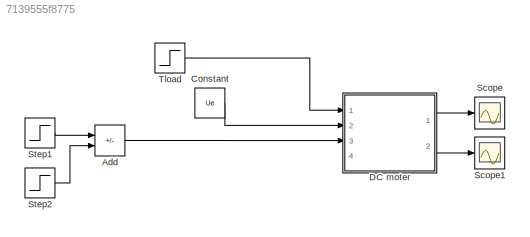
MODEL slx_7139555f8775
KIND model
CONFIG AbsTol = auto
CONFIG EnableMultiTasking = off
CONFIG FixedStep = auto
CONFIG MaxStep = 0.001
CONFIG MinStep = auto
CONFIG RelTol = 1e-3
CONFIG SampleTimeConstraint = Unconstrained
CONFIG SolverName = VariableStepAuto
CONFIG StartTime = 0.0
CONFIG StopTime = Tmdl
BLOCK [Sum] Add
  IconShape = rectangular
  Inputs = +-
  Ports = [2, 1]
BLOCK [Constant] Constant
  Value = Ue
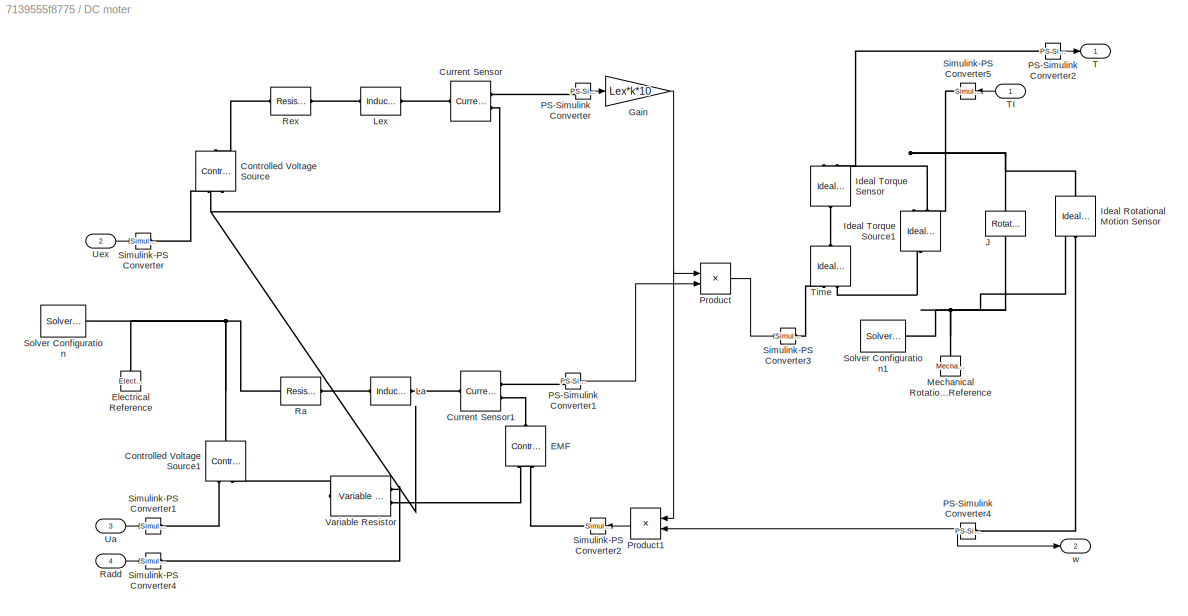
BLOCK [SubSystem] DC moter
  Ports = [4, 2]
  RequestExecContextInheritance = off
BLOCK [Reference] DC moter/Controlled Voltage Source  REF=fl_lib/Electrical/Electrical Sources/Controlled Voltage
Source
  NameLocation = right
  Ports = [0, 0, 0, 0, 0, 1, 2]
  SourceBlock = fl_lib/Electrical/Electrical Sources/Controlled Voltage\nSource
  SourceProductBaseCode = PW,SS,VE
  SourceType = Controlled Voltage\nSource
BLOCK [Reference] DC moter/Controlled Voltage Source1  REF=fl_lib/Electrical/Electrical Sources/Controlled Voltage
Source
  NameLocation = right
  Ports = [0, 0, 0, 0, 0, 1, 2]
  SourceBlock = fl_lib/Electrical/Electrical Sources/Controlled Voltage\nSource
  SourceProductBaseCode = PW,SS,VE
  SourceType = Controlled Voltage\nSource
BLOCK [Reference] DC moter/Current Sensor  REF=fl_lib/Electrical/Electrical Sensors/Current Sensor
  Ports = [0, 0, 0, 0, 0, 1, 2]
  SourceBlock = fl_lib/Electrical/Electrical Sensors/Current Sensor
  SourceProductBaseCode = PW,SS,VE
  SourceType = Current Sensor
BLOCK [Reference] DC moter/Current Sensor1  REF=fl_lib/Electrical/Electrical Sensors/Current Sensor
  Ports = [0, 0, 0, 0, 0, 1, 2]
  SourceBlock = fl_lib/Electrical/Electrical Sensors/Current Sensor
  SourceProductBaseCode = PW,SS,VE
  SourceType = Current Sensor
BLOCK [Reference] DC moter/EMF  REF=fl_lib/Electrical/Electrical Sources/Controlled Voltage
Source
  NameLocation = right
  Ports = [0, 0, 0, 0, 0, 1, 2]
  SourceBlock = fl_lib/Electrical/Electrical Sources/Controlled Voltage\nSource
  SourceProductBaseCode = PW,SS,VE
  SourceType = Controlled Voltage\nSource
BLOCK [Reference] DC moter/Electrical Reference  REF=fl_lib/Electrical/Electrical Elements/Electrical Reference
  NameLocation = right
  Ports = [0, 0, 0, 0, 0, 1]
  SourceBlock = fl_lib/Electrical/Electrical Elements/Electrical Reference
  SourceProductBaseCode = PW,SS,VE
  SourceType = Electrical Reference
BLOCK [Gain] DC moter/Gain
  Gain = Lex*k*10
BLOCK [Reference] DC moter/Ideal Rotational Motion Sensor  REF=fl_lib/Mechanical/Mechanical Sensors/Ideal Rotational
Motion Sensor
  NameLocation = left
  Ports = [0, 0, 0, 0, 0, 1, 3]
  SourceBlock = fl_lib/Mechanical/Mechanical Sensors/Ideal Rotational\nMotion Sensor
  SourceProductBaseCode = PW,SS,VE
  SourceType = Ideal Rotational\nMotion Sensor
BLOCK [Reference] DC moter/Ideal Torque Sensor  REF=fl_lib/Mechanical/Mechanical Sensors/Ideal Torque Sensor
  NameLocation = right
  Ports = [0, 0, 0, 0, 0, 1, 2]
  SourceBlock = fl_lib/Mechanical/Mechanical Sensors/Ideal Torque Sensor
  SourceProductBaseCode = PW,SS,VE
  SourceType = Ideal Torque Sensor
BLOCK [Reference] DC moter/Ideal Torque Source1  REF=fl_lib/Mechanical/Mechanical Sources/Ideal Torque Source
  NameLocation = left
  Ports = [0, 0, 0, 0, 0, 1, 2]
  SourceBlock = fl_lib/Mechanical/Mechanical Sources/Ideal Torque Source
  SourceProductBaseCode = PW,SS,VE
  SourceType = Ideal Torque Source
BLOCK [Reference] DC moter/J  REF=fl_lib/Mechanical/Rotational Elements/Rotational Inerter
  NameLocation = left
  Ports = [0, 0, 0, 0, 0, 1, 1]
  SourceBlock = fl_lib/Mechanical/Rotational Elements/Rotational Inerter
  SourceProductBaseCode = PW,SS,VE
  SourceType = Rotational Inerter
BLOCK [Reference] DC moter/La  REF=ee_lib/Passive/Inductor
  Ports = [0, 0, 0, 0, 0, 1, 1]
  SourceBlock = ee_lib/Passive/Inductor
  SourceProductBaseCode = PS
  SourceType = Inductor
BLOCK [Reference] DC moter/Lex  REF=ee_lib/Passive/Inductor
  Ports = [0, 0, 0, 0, 0, 1, 1]
  SourceBlock = ee_lib/Passive/Inductor
  SourceProductBaseCode = PS
  SourceType = Inductor
BLOCK [Reference] DC moter/Mechanical Rotational Reference  REF=fl_lib/Mechanical/Rotational Elements/Mechanical
Rotational Reference
  NameLocation = right
  Ports = [0, 0, 0, 0, 0, 1]
  SourceBlock = fl_lib/Mechanical/Rotational Elements/Mechanical\nRotational Reference
  SourceProductBaseCode = PW,SS,VE
  SourceType = Mechanical\nRotational Reference
BLOCK [Reference] DC moter/PS-Simulink Converter  REF=nesl_utility/PS-Simulink
Converter
  Ports = [0, 1, 0, 0, 0, 1]
  SourceBlock = nesl_utility/PS-Simulink\nConverter
  SourceProductBaseCode = SS,PW,VE
  SourceType = PS-Simulink\nConverter
BLOCK [Reference] DC moter/PS-Simulink Converter1  REF=nesl_utility/PS-Simulink
Converter
  Ports = [0, 1, 0, 0, 0, 1]
  SourceBlock = nesl_utility/PS-Simulink\nConverter
  SourceProductBaseCode = SS,PW,VE
  SourceType = PS-Simulink\nConverter
BLOCK [Reference] DC moter/PS-Simulink Converter2  REF=nesl_utility/PS-Simulink
Converter
  Ports = [0, 1, 0, 0, 0, 1]
  SourceBlock = nesl_utility/PS-Simulink\nConverter
  SourceProductBaseCode = SS,PW,VE
  SourceType = PS-Simulink\nConverter
BLOCK [Reference] DC moter/PS-Simulink Converter4  REF=nesl_utility/PS-Simulink
Converter
  NameLocation = top
  Ports = [0, 1, 0, 0, 0, 1]
  SourceBlock = nesl_utility/PS-Simulink\nConverter
  SourceProductBaseCode = SS,PW,VE
  SourceType = PS-Simulink\nConverter
BLOCK [Product] DC moter/Product
  Ports = [2, 1]
BLOCK [Product] DC moter/Product1
  NameLocation = top
  Ports = [2, 1]
BLOCK [Reference] DC moter/Ra  REF=fl_lib/Electrical/Electrical Elements/Resistor
  Ports = [0, 0, 0, 0, 0, 1, 1]
  SourceBlock = fl_lib/Electrical/Electrical Elements/Resistor
  SourceProductBaseCode = PW,SS,VE
  SourceType = Resistor
BLOCK [Inport] DC moter/Radd
  Port = 4
BLOCK [Reference] DC moter/Rex  REF=fl_lib/Electrical/Electrical Elements/Resistor
  Ports = [0, 0, 0, 0, 0, 1, 1]
  SourceBlock = fl_lib/Electrical/Electrical Elements/Resistor
  SourceProductBaseCode = PW,SS,VE
  SourceType = Resistor
BLOCK [Reference] DC moter/Simulink-PS Converter  REF=nesl_utility/Simulink-PS
Converter
  Ports = [1, 0, 0, 0, 0, 0, 1]
  SourceBlock = nesl_utility/Simulink-PS\nConverter
  SourceProductBaseCode = SS,PW,VE
  SourceType = Simulink-PS\nConverter
BLOCK [Reference] DC moter/Simulink-PS Converter1  REF=nesl_utility/Simulink-PS
Converter
  Ports = [1, 0, 0, 0, 0, 0, 1]
  SourceBlock = nesl_utility/Simulink-PS\nConverter
  SourceProductBaseCode = SS,PW,VE
  SourceType = Simulink-PS\nConverter
BLOCK [Reference] DC moter/Simulink-PS Converter2  REF=nesl_utility/Simulink-PS
Converter
  NameLocation = top
  Ports = [1, 0, 0, 0, 0, 0, 1]
  SourceBlock = nesl_utility/Simulink-PS\nConverter
  SourceProductBaseCode = SS,PW,VE
  SourceType = Simulink-PS\nConverter
BLOCK [Reference] DC moter/Simulink-PS Converter3  REF=nesl_utility/Simulink-PS
Converter
  Ports = [1, 0, 0, 0, 0, 0, 1]
  SourceBlock = nesl_utility/Simulink-PS\nConverter
  SourceProductBaseCode = SS,PW,VE
  SourceType = Simulink-PS\nConverter
BLOCK [Reference] DC moter/Simulink-PS Converter4  REF=nesl_utility/Simulink-PS
Converter
  Ports = [1, 0, 0, 0, 0, 0, 1]
  SourceBlock = nesl_utility/Simulink-PS\nConverter
  SourceProductBaseCode = SS,PW,VE
  SourceType = Simulink-PS\nConverter
BLOCK [Reference] DC moter/Simulink-PS Converter5  REF=nesl_utility/Simulink-PS
Converter
  NameLocation = top
  Ports = [1, 0, 0, 0, 0, 0, 1]
  SourceBlock = nesl_utility/Simulink-PS\nConverter
  SourceProductBaseCode = SS,PW,VE
  SourceType = Simulink-PS\nConverter
BLOCK [Reference] DC moter/Solver Configuration  REF=nesl_utility/Solver
Configuration
  Ports = [0, 0, 0, 0, 0, 0, 1]
  SourceBlock = nesl_utility/Solver\nConfiguration
  SourceProductBaseCode = SS,PW,VE
  SourceType = Solver\nConfiguration
BLOCK [Reference] DC moter/Solver Configuration1  REF=nesl_utility/Solver
Configuration
  Ports = [0, 0, 0, 0, 0, 0, 1]
  SourceBlock = nesl_utility/Solver\nConfiguration
  SourceProductBaseCode = SS,PW,VE
  SourceType = Solver\nConfiguration
BLOCK [Outport] DC moter/T
BLOCK [Inport] DC moter/TI
BLOCK [Reference] DC moter/Time  REF=fl_lib/Mechanical/Mechanical Sources/Ideal Torque Source
  NameLocation = right
  Ports = [0, 0, 0, 0, 0, 1, 2]
  SourceBlock = fl_lib/Mechanical/Mechanical Sources/Ideal Torque Source
  SourceProductBaseCode = PW,SS,VE
  SourceType = Ideal Torque Source
BLOCK [Inport] DC moter/Ua
  Port = 3
BLOCK [Inport] DC moter/Uex
  Port = 2
BLOCK [Reference] DC moter/Variable Resistor  REF=fl_lib/Electrical/Electrical Elements/Variable Resistor
  Ports = [0, 0, 0, 0, 0, 2, 1]
  SourceBlock = fl_lib/Electrical/Electrical Elements/Variable Resistor
  SourceProductBaseCode = PW,SS,VE
  SourceType = Variable Resistor
BLOCK [Outport] DC moter/w
  Port = 2
BLOCK [Scope] Scope
  Floating = off
  NumInputPorts = 1
  Ports = [1]
  ScopeSpecificationString = Simulink.scopes.TimeScopeBlockCfg('CurrentConfiguration', extmgr.ConfigurationSet(extmgr.Configuration('Core','General UI',true),extmgr.Configuration('Core','Source UI',true),extmgr.Configuration('Sources','WiredSimulink',true,'DataLoggingVariableName','torque','DataLogging',true,'DataLoggingSaveFormat','StructureWithTime'),extmgr.Configuration('Visuals','Time Domain',true,'SerializedDisplays',{st...<+1432ch>
BLOCK [Scope] Scope1
  Floating = off
  NumInputPorts = 1
  Ports = [1]
  ScopeSpecificationString = Simulink.scopes.TimeScopeBlockCfg('CurrentConfiguration', extmgr.ConfigurationSet(extmgr.Configuration('Core','General UI',true),extmgr.Configuration('Core','Source UI',true),extmgr.Configuration('Sources','WiredSimulink',true,'DataLogging',true,'DataLoggingSaveFormat','StructureWithTime','DataLoggingVariableName','w'),extmgr.Configuration('Visuals','Time Domain',true,'SerializedDisplays',{struct(...<+1427ch>
BLOCK [Step] Step1
  After = Ua
  SampleTime = 0
BLOCK [Step] Step2
  After = Ua*0.8
  SampleTime = 0
  Time = 50
BLOCK [Step] Tload
  After = Tload/10
  SampleTime = 0
LINE Add:1 -> DC moter:3
LINE Constant:1 -> DC moter:2
NET DC moter/Gain:1 -> DC moter/Product1:1, DC moter/Product:1
LINE DC moter/PS-Simulink Converter1:1 -> DC moter/Product:2
LINE DC moter/PS-Simulink Converter2:1 -> DC moter/T:1
NET DC moter/PS-Simulink Converter4:1 -> DC moter/Product1:2, DC moter/w:1
LINE DC moter/PS-Simulink Converter:1 -> DC moter/Gain:1
LINE DC moter/Product1:1 -> DC moter/Simulink-PS Converter2:1
LINE DC moter/Product:1 -> DC moter/Simulink-PS Converter3:1
LINE DC moter/Radd:1 -> DC moter/Simulink-PS Converter4:1
LINE DC moter/TI:1 -> DC moter/Simulink-PS Converter5:1
LINE DC moter/Ua:1 -> DC moter/Simulink-PS Converter1:1
LINE DC moter/Uex:1 -> DC moter/Simulink-PS Converter:1
LINE DC moter:1 -> Scope:1
LINE DC moter:2 -> Scope1:1
LINE Step1:1 -> Add:1
LINE Step2:1 -> Add:2
LINE Tload:1 -> DC moter:1
PNET net1: DC moter/Controlled Voltage Source1:LConn1 -- DC moter/Controlled Voltage Source:RConn2 -- DC moter/Current Sensor:RConn2 -- DC moter/Electrical Reference:LConn1 -- DC moter/Ra:LConn1 -- DC moter/Solver Configuration:RConn1
PLINE DC moter/Controlled Voltage Source1:RConn1 -- DC moter/Simulink-PS Converter1:RConn1
PLINE DC moter/Controlled Voltage Source1:RConn2 -- DC moter/Variable Resistor:RConn1
PLINE DC moter/Controlled Voltage Source:LConn1 -- DC moter/Rex:LConn1
PLINE DC moter/Controlled Voltage Source:RConn1 -- DC moter/Simulink-PS Converter:RConn1
PLINE DC moter/Current Sensor1:LConn1 -- DC moter/La:RConn1
PLINE DC moter/Current Sensor1:RConn1 -- DC moter/PS-Simulink Converter1:LConn1
PLINE DC moter/Current Sensor1:RConn2 -- DC moter/EMF:LConn1
PLINE DC moter/Current Sensor:LConn1 -- DC moter/Lex:RConn1
PLINE DC moter/Current Sensor:RConn1 -- DC moter/PS-Simulink Converter:LConn1
PLINE DC moter/EMF:RConn1 -- DC moter/Simulink-PS Converter2:RConn1
PLINE DC moter/EMF:RConn2 -- DC moter/Variable Resistor:LConn2
PNET net2: DC moter/Ideal Rotational Motion Sensor:LConn1 -- DC moter/Ideal Torque Sensor:RConn1 -- DC moter/Ideal Torque Source1:RConn2 -- DC moter/J:LConn1
PNET net3: DC moter/Ideal Rotational Motion Sensor:RConn1 -- DC moter/Ideal Torque Source1:LConn1 -- DC moter/J:RConn1 -- DC moter/Mechanical Rotational Reference:LConn1 -- DC moter/Solver Configuration1:RConn1 -- DC moter/Time:RConn2
PLINE DC moter/Ideal Rotational Motion Sensor:RConn2 -- DC moter/PS-Simulink Converter4:LConn1
PLINE DC moter/Ideal Torque Sensor:LConn1 -- DC moter/Time:LConn1
PLINE DC moter/Ideal Torque Sensor:RConn2 -- DC moter/PS-Simulink Converter2:LConn1
PLINE DC moter/Ideal Torque Source1:RConn1 -- DC moter/Simulink-PS Converter5:RConn1
PLINE DC moter/La:LConn1 -- DC moter/Ra:RConn1
PLINE DC moter/Lex:LConn1 -- DC moter/Rex:RConn1
PLINE DC moter/Simulink-PS Converter3:RConn1 -- DC moter/Time:RConn1
PLINE DC moter/Simulink-PS Converter4:RConn1 -- DC moter/Variable Resistor:LConn1
note: NET lines group one-source signal fan-out (src -> all destinations, sorted); 1:1 wires keep LINE; PNET lines group multi-terminal physical nets as a canonical sorted terminal list (undirected conserving connections); 2-terminal nets keep the pairwise PLINE form
